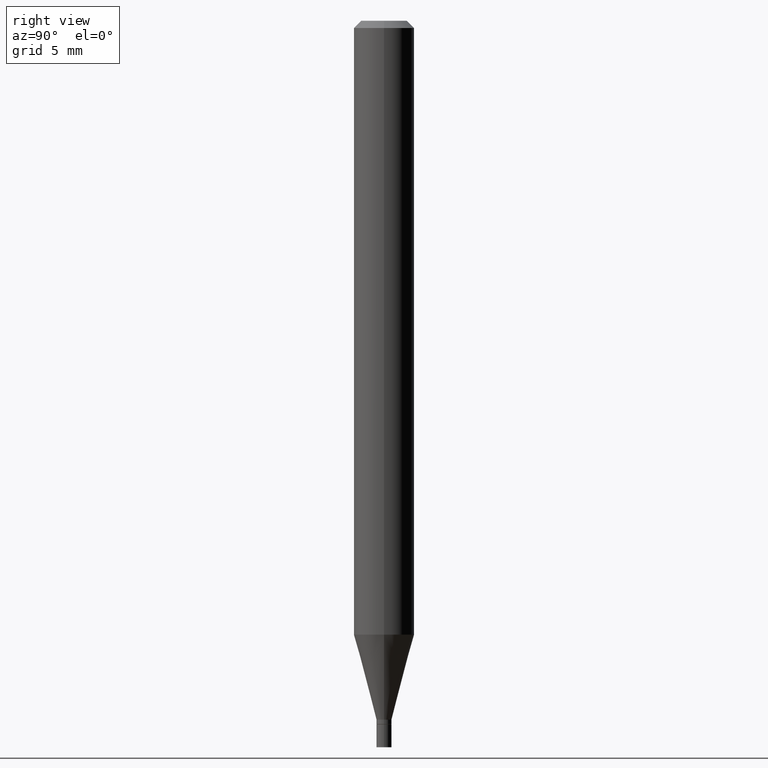
[diagram: clean part render]
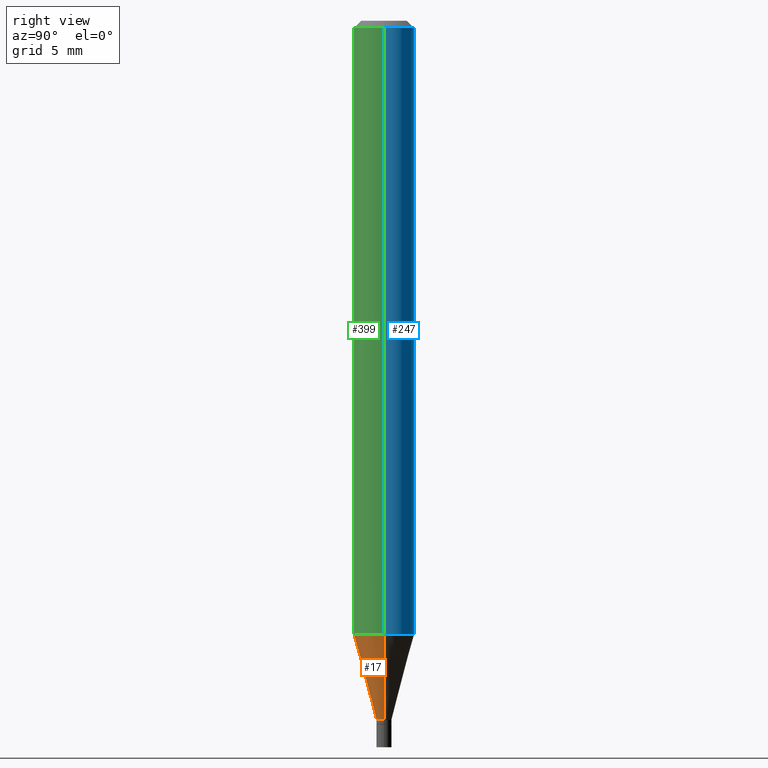
[diagram: same view with three faces highlighted in distinct colors, each labeled with its STEP entity id]
A machine part, right view with three faces highlighted in distinct colors.
Their STEP definitions:

[orange] entity #17 — the highlighted conical surface has half-angle 15 deg.
#1 = EDGE_CURVE ( 'NONE', #279, #460, #418, .T. ) ;
#13 = VERTEX_POINT ( 'NONE', #165 ) ;
#17 = ADVANCED_FACE ( 'NONE', ( #113 ), #44, .T. ) ;
#26 = EDGE_LOOP ( 'NONE', ( #393, #345, #454, #132 ) ) ;
#29 = VECTOR ( 'NONE', #189, 39.37007874015748854 ) ;
#42 = CARTESIAN_POINT ( 'NONE',  ( -0.06250000000000000000, -3.981690231839260141E-15, -1.267593612044263018 ) ) ;
#44 = CONICAL_SURFACE ( 'NONE', #371, 0.01549999999999992183, 0.2617993877991499629 ) ;
#51 = CARTESIAN_POINT ( 'NONE',  ( -0.01549999999999992183, -4.454881839873552684E-15, -1.443000000000000060 ) ) ;
#76 = DIRECTION ( 'NONE',  ( 1.000000000000000000, -6.982962677686273810E-15, 0.000000000000000000 ) ) ;
#87 = DIRECTION ( 'NONE',  ( -2.445468806185136597E-29, 3.491481338843145583E-15, 1.000000000000000000 ) ) ;
#108 = CARTESIAN_POINT ( 'NONE',  ( 3.528811487325152432E-29, -5.038207571950659670E-15, -1.443000000000000060 ) ) ;
#113 = FACE_OUTER_BOUND ( 'NONE', #26, .T. ) ;
#132 = ORIENTED_EDGE ( 'NONE', *, *, #1, .F. ) ;
#136 = CARTESIAN_POINT ( 'NONE',  ( 3.099860637173788860E-29, -4.425779441689322757E-15, -1.267593612044263018 ) ) ;
#165 = CARTESIAN_POINT ( 'NONE',  ( 0.01549999999999992183, -5.146443493454796047E-15, -1.443000000000000060 ) ) ;
#179 = EDGE_CURVE ( 'NONE', #363, #13, #245, .T. ) ;
#189 = DIRECTION ( 'NONE',  ( 0.2588190451025212391, 1.565188264969622362E-15, 0.9659258262890679791 ) ) ;
#205 = AXIS2_PLACEMENT_3D ( 'NONE', #136, #316, #243 ) ;
#210 = CARTESIAN_POINT ( 'NONE',  ( -0.01549999999999992183, -4.928073447907845227E-15, -1.443000000000000060 ) ) ;
#227 = LINE ( 'NONE', #333, #29 ) ;
#233 = AXIS2_PLACEMENT_3D ( 'NONE', #108, #251, #380 ) ;
#243 = DIRECTION ( 'NONE',  ( 1.000000000000000000, -6.982962677686262766E-15, 0.000000000000000000 ) ) ;
#245 = CIRCLE ( 'NONE', #233, 0.01549999999999992183 ) ;
#251 = DIRECTION ( 'NONE',  ( -2.445468806185136597E-29, 3.491481338843145583E-15, 1.000000000000000000 ) ) ;
#279 = VERTEX_POINT ( 'NONE', #42 ) ;
#316 = DIRECTION ( 'NONE',  ( -2.445468806185136597E-29, 3.491481338843145583E-15, 1.000000000000000000 ) ) ;
#333 = CARTESIAN_POINT ( 'NONE',  ( 0.01549999999999992183, -5.146443493454796047E-15, -1.443000000000000060 ) ) ;
#338 = EDGE_CURVE ( 'NONE', #13, #460, #227, .T. ) ;
#339 = CARTESIAN_POINT ( 'NONE',  ( 0.06250000000000000000, -4.862214609044713638E-15, -1.267593612044263018 ) ) ;
#345 = ORIENTED_EDGE ( 'NONE', *, *, #179, .T. ) ;
#359 = DIRECTION ( 'NONE',  ( -0.2588190451025212391, 5.211531920934549464E-15, 0.9659258262890679791 ) ) ;
#363 = VERTEX_POINT ( 'NONE', #51 ) ;
#371 = AXIS2_PLACEMENT_3D ( 'NONE', #416, #87, #76 ) ;
#372 = VECTOR ( 'NONE', #359, 39.37007874015748854 ) ;
#380 = DIRECTION ( 'NONE',  ( 1.000000000000000000, -6.982962677686273810E-15, 0.000000000000000000 ) ) ;
#393 = ORIENTED_EDGE ( 'NONE', *, *, #421, .F. ) ;
#398 = LINE ( 'NONE', #210, #372 ) ;
#416 = CARTESIAN_POINT ( 'NONE',  ( 3.528811487325152432E-29, -5.038207571950659670E-15, -1.443000000000000060 ) ) ;
#418 = CIRCLE ( 'NONE', #205, 0.06250000000000000000 ) ;
#421 = EDGE_CURVE ( 'NONE', #363, #279, #398, .T. ) ;
#454 = ORIENTED_EDGE ( 'NONE', *, *, #338, .T. ) ;
#460 = VERTEX_POINT ( 'NONE', #339 ) ;

[blue] entity #247 — the highlighted cylindrical surface (edge-blend (fillet) strip) has radius 1.5875 mm, axis along (-0, 0, 1).
#18 = DIRECTION ( 'NONE',  ( 1.000000000000000000, -6.982962677686266711E-15, 0.000000000000000000 ) ) ;
#42 = CARTESIAN_POINT ( 'NONE',  ( -0.06250000000000000000, -3.981690231839260141E-15, -1.267593612044263018 ) ) ;
#58 = ORIENTED_EDGE ( 'NONE', *, *, #162, .T. ) ;
#66 = DIRECTION ( 'NONE',  ( -2.445468806185136597E-29, 3.491481338843145583E-15, 1.000000000000000000 ) ) ;
#96 = EDGE_CURVE ( 'NONE', #460, #222, #342, .T. ) ;
#137 = CARTESIAN_POINT ( 'NONE',  ( 0.000000000000000000, 0.000000000000000000, 0.000000000000000000 ) ) ;
#138 = EDGE_CURVE ( 'NONE', #460, #279, #463, .T. ) ;
#144 = ORIENTED_EDGE ( 'NONE', *, *, #466, .F. ) ;
#162 = EDGE_CURVE ( 'NONE', #279, #381, #439, .T. ) ;
#195 = DIRECTION ( 'NONE',  ( -2.445468806185136597E-29, 3.491481338843145583E-15, 1.000000000000000000 ) ) ;
#201 = CARTESIAN_POINT ( 'NONE',  ( 0.06250000000000000000, -4.888073874380388472E-16, -0.01499999999999999944 ) ) ;
#222 = VERTEX_POINT ( 'NONE', #201 ) ;
#228 = CARTESIAN_POINT ( 'NONE',  ( 3.668203209277705088E-31, -5.237222008264718399E-17, -0.01499999999999999944 ) ) ;
#229 = DIRECTION ( 'NONE',  ( 1.000000000000000000, -6.982962677686262766E-15, 0.000000000000000000 ) ) ;
#234 = AXIS2_PLACEMENT_3D ( 'NONE', #137, #66, #351 ) ;
#247 = ADVANCED_FACE ( 'NONE', ( #272 ), #308, .T. ) ;
#249 = CARTESIAN_POINT ( 'NONE',  ( -0.06250000000000000000, -1.794986621035922499E-15, -0.01499999999999999944 ) ) ;
#272 = FACE_OUTER_BOUND ( 'NONE', #350, .T. ) ;
#279 = VERTEX_POINT ( 'NONE', #42 ) ;
#292 = CARTESIAN_POINT ( 'NONE',  ( -0.06250000000000000000, 4.440892098500626162E-16, -3.074334431409316114E-30 ) ) ;
#297 = VECTOR ( 'NONE', #404, 39.37007874015748143 ) ;
#301 = DIRECTION ( 'NONE',  ( -2.445468806185136597E-29, 3.491481338843145583E-15, 1.000000000000000000 ) ) ;
#308 = CYLINDRICAL_SURFACE ( 'NONE', #234, 0.06250000000000000000 ) ;
#323 = ORIENTED_EDGE ( 'NONE', *, *, #138, .T. ) ;
#332 = CARTESIAN_POINT ( 'NONE',  ( 3.099860637173788860E-29, -4.425779441689322757E-15, -1.267593612044263018 ) ) ;
#339 = CARTESIAN_POINT ( 'NONE',  ( 0.06250000000000000000, -4.862214609044713638E-15, -1.267593612044263018 ) ) ;
#342 = LINE ( 'NONE', #373, #297 ) ;
#346 = VECTOR ( 'NONE', #374, 39.37007874015748143 ) ;
#350 = EDGE_LOOP ( 'NONE', ( #323, #58, #144, #422 ) ) ;
#351 = DIRECTION ( 'NONE',  ( 1.000000000000000000, -6.982962677686266711E-15, 4.876176775795935793E-29 ) ) ;
#355 = CIRCLE ( 'NONE', #400, 0.06250000000000000000 ) ;
#373 = CARTESIAN_POINT ( 'NONE',  ( 0.06250000000000000000, -4.364351673553916694E-16, 3.047610484872459871E-30 ) ) ;
#374 = DIRECTION ( 'NONE',  ( -2.445468806185136877E-29, 3.491481338843145188E-15, 1.000000000000000000 ) ) ;
#381 = VERTEX_POINT ( 'NONE', #249 ) ;
#390 = AXIS2_PLACEMENT_3D ( 'NONE', #332, #301, #229 ) ;
#400 = AXIS2_PLACEMENT_3D ( 'NONE', #228, #195, #18 ) ;
#404 = DIRECTION ( 'NONE',  ( -2.445468806185136877E-29, 3.491481338843145188E-15, 1.000000000000000000 ) ) ;
#422 = ORIENTED_EDGE ( 'NONE', *, *, #96, .F. ) ;
#439 = LINE ( 'NONE', #292, #346 ) ;
#460 = VERTEX_POINT ( 'NONE', #339 ) ;
#463 = CIRCLE ( 'NONE', #390, 0.06250000000000000000 ) ;
#466 = EDGE_CURVE ( 'NONE', #222, #381, #355, .T. ) ;

[green] entity #399 — the highlighted cylindrical surface (edge-blend (fillet) strip) has radius 1.5875 mm, axis along (-0, 0, 1).
#1 = EDGE_CURVE ( 'NONE', #279, #460, #418, .T. ) ;
#21 = ORIENTED_EDGE ( 'NONE', *, *, #96, .T. ) ;
#42 = CARTESIAN_POINT ( 'NONE',  ( -0.06250000000000000000, -3.981690231839260141E-15, -1.267593612044263018 ) ) ;
#52 = DIRECTION ( 'NONE',  ( -2.445468806185136597E-29, 3.491481338843145583E-15, 1.000000000000000000 ) ) ;
#80 = FACE_OUTER_BOUND ( 'NONE', #402, .T. ) ;
#90 = AXIS2_PLACEMENT_3D ( 'NONE', #212, #231, #408 ) ;
#96 = EDGE_CURVE ( 'NONE', #460, #222, #342, .T. ) ;
#115 = ORIENTED_EDGE ( 'NONE', *, *, #1, .T. ) ;
#118 = AXIS2_PLACEMENT_3D ( 'NONE', #156, #52, #193 ) ;
#136 = CARTESIAN_POINT ( 'NONE',  ( 3.099860637173788860E-29, -4.425779441689322757E-15, -1.267593612044263018 ) ) ;
#156 = CARTESIAN_POINT ( 'NONE',  ( 0.000000000000000000, 0.000000000000000000, 0.000000000000000000 ) ) ;
#162 = EDGE_CURVE ( 'NONE', #279, #381, #439, .T. ) ;
#193 = DIRECTION ( 'NONE',  ( 1.000000000000000000, -6.982962677686266711E-15, 4.876176775795935793E-29 ) ) ;
#201 = CARTESIAN_POINT ( 'NONE',  ( 0.06250000000000000000, -4.888073874380388472E-16, -0.01499999999999999944 ) ) ;
#205 = AXIS2_PLACEMENT_3D ( 'NONE', #136, #316, #243 ) ;
#212 = CARTESIAN_POINT ( 'NONE',  ( 3.668203209277705088E-31, -5.237222008264718399E-17, -0.01499999999999999944 ) ) ;
#221 = CYLINDRICAL_SURFACE ( 'NONE', #118, 0.06250000000000000000 ) ;
#222 = VERTEX_POINT ( 'NONE', #201 ) ;
#231 = DIRECTION ( 'NONE',  ( -2.445468806185136597E-29, 3.491481338843145583E-15, 1.000000000000000000 ) ) ;
#243 = DIRECTION ( 'NONE',  ( 1.000000000000000000, -6.982962677686262766E-15, 0.000000000000000000 ) ) ;
#246 = CIRCLE ( 'NONE', #90, 0.06250000000000000000 ) ;
#249 = CARTESIAN_POINT ( 'NONE',  ( -0.06250000000000000000, -1.794986621035922499E-15, -0.01499999999999999944 ) ) ;
#268 = ORIENTED_EDGE ( 'NONE', *, *, #162, .F. ) ;
#279 = VERTEX_POINT ( 'NONE', #42 ) ;
#292 = CARTESIAN_POINT ( 'NONE',  ( -0.06250000000000000000, 4.440892098500626162E-16, -3.074334431409316114E-30 ) ) ;
#297 = VECTOR ( 'NONE', #404, 39.37007874015748143 ) ;
#316 = DIRECTION ( 'NONE',  ( -2.445468806185136597E-29, 3.491481338843145583E-15, 1.000000000000000000 ) ) ;
#339 = CARTESIAN_POINT ( 'NONE',  ( 0.06250000000000000000, -4.862214609044713638E-15, -1.267593612044263018 ) ) ;
#342 = LINE ( 'NONE', #373, #297 ) ;
#346 = VECTOR ( 'NONE', #374, 39.37007874015748143 ) ;
#373 = CARTESIAN_POINT ( 'NONE',  ( 0.06250000000000000000, -4.364351673553916694E-16, 3.047610484872459871E-30 ) ) ;
#374 = DIRECTION ( 'NONE',  ( -2.445468806185136877E-29, 3.491481338843145188E-15, 1.000000000000000000 ) ) ;
#381 = VERTEX_POINT ( 'NONE', #249 ) ;
#399 = ADVANCED_FACE ( 'NONE', ( #80 ), #221, .T. ) ;
#402 = EDGE_LOOP ( 'NONE', ( #268, #115, #21, #438 ) ) ;
#404 = DIRECTION ( 'NONE',  ( -2.445468806185136877E-29, 3.491481338843145188E-15, 1.000000000000000000 ) ) ;
#408 = DIRECTION ( 'NONE',  ( 1.000000000000000000, -6.982962677686266711E-15, 0.000000000000000000 ) ) ;
#418 = CIRCLE ( 'NONE', #205, 0.06250000000000000000 ) ;
#438 = ORIENTED_EDGE ( 'NONE', *, *, #455, .F. ) ;
#439 = LINE ( 'NONE', #292, #346 ) ;
#455 = EDGE_CURVE ( 'NONE', #381, #222, #246, .T. ) ;
#460 = VERTEX_POINT ( 'NONE', #339 ) ;